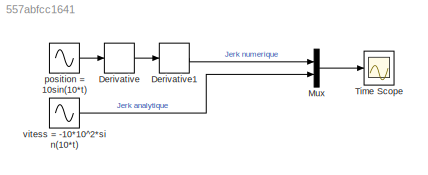
MODEL slx_557abfcc1641
KIND model
CONFIG AbsTol = auto
CONFIG FixedStep = 0.01
CONFIG MaxStep = 0.001
CONFIG MinStep = auto
CONFIG RelTol = 1e-3
CONFIG SampleTimeConstraint = Unconstrained
CONFIG Solver = FixedStepAuto
CONFIG SolverMode = Auto
CONFIG SolverName = FixedStepAuto
CONFIG StartTime = 0.0
CONFIG StopTime = 10
BLOCK [Derivative] Derivative
BLOCK [Derivative] Derivative1
BLOCK [Mux] Mux
  DisplayOption = bar
  Inputs = 2
  Ports = [2, 1]
BLOCK [Scope] Time Scope
  DefaultConfigurationName = spbscopes.TimeScopeBlockCfg
  Ports = [1]
  ScopeSpecificationString = spbscopes.TimeScopeBlockCfg('CurrentConfiguration', extmgr.ConfigurationSet(extmgr.Configuration('Core','General UI',true,'FigureColor',[1 1 1]),extmgr.Configuration('Core','Source UI',true),extmgr.Configuration('Sources','WiredSimulink',true),extmgr.Configuration('Visuals','Time Domain',true,'DisplayPropertyDefaults',struct('MinYLimReal','43.0999','MaxYLimReal','569.62271','YLabelReal','position(...<+2021ch>
  UserDataPersistent = on
BLOCK [Sin] position = 10sin(10*t)
  Amplitude = 10
  Frequency = 10
  Ports = [0, 1]
  SampleTime = 0
BLOCK [Sin] vitess = -10*10^2*sin(10*t)
  Amplitude = -10*10^2
  Frequency = 10
  Ports = [0, 1]
  SampleTime = 0
LINE Derivative1:1 -> Mux:1
LINE Derivative:1 -> Derivative1:1
LINE Mux:1 -> Time Scope:1
LINE position = 10sin(10*t):1 -> Derivative:1
LINE vitess = -10*10^2*sin(10*t):1 -> Mux:2
